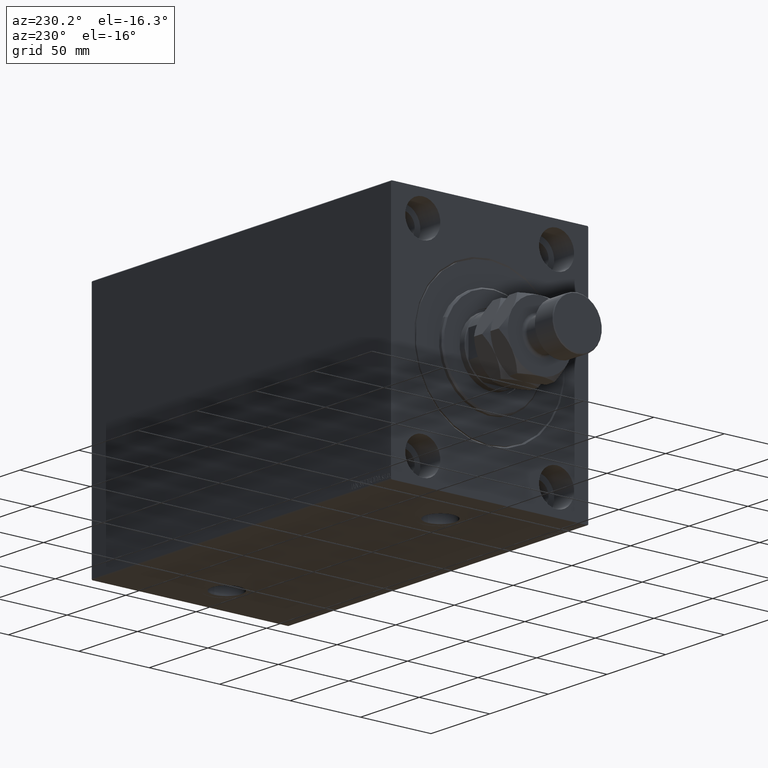
[diagram: clean part render]
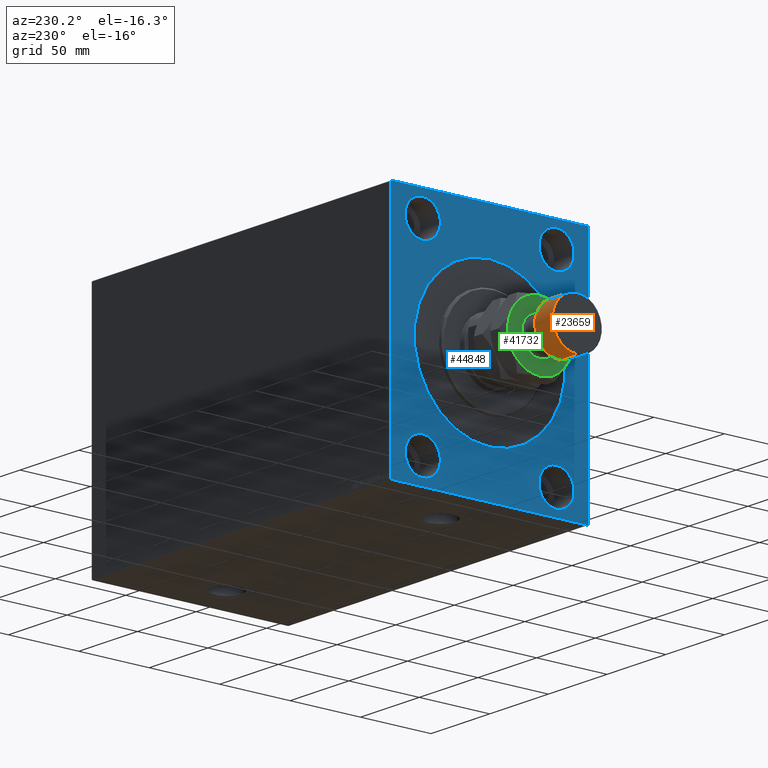
[diagram: same view with three faces highlighted in distinct colors, each labeled with its STEP entity id]
A machine part, auxiliary view with three faces highlighted in distinct colors.
Their STEP definitions:

[orange] entity #23659 — the highlighted cylindrical surface (edge-blend (fillet) strip) has radius 17.5 mm, axis along (1, -0, -0).
#3370 = EDGE_CURVE ( 'NONE', #46979, #18808, #38645, .T. ) ;
#5675 = CARTESIAN_POINT ( 'NONE',  ( -17.50000000000000355, 0.000000000000000000, 60.00000000000000000 ) ) ;
#6267 = CARTESIAN_POINT ( 'NONE',  ( -17.50000000000000355, 0.000000000000000000, 59.50000000000000000 ) ) ;
#6360 = DIRECTION ( 'NONE',  ( -1.000000000000000000, 0.000000000000000000, 0.000000000000000000 ) ) ;
#8763 = CARTESIAN_POINT ( 'NONE',  ( 17.50000000000000355, 2.143131898507868643E-15, 60.00000000000000000 ) ) ;
#9243 = AXIS2_PLACEMENT_3D ( 'NONE', #19319, #15052, #29322 ) ;
#9318 = VERTEX_POINT ( 'NONE', #6267 ) ;
#9461 = DIRECTION ( 'NONE',  ( -0.000000000000000000, -0.000000000000000000, -1.000000000000000000 ) ) ;
#9656 = AXIS2_PLACEMENT_3D ( 'NONE', #14217, #18262, #6360 ) ;
#13926 = CARTESIAN_POINT ( 'NONE',  ( 17.50000000000000355, 2.143131898507868643E-15, 44.50000000000000000 ) ) ;
#14217 = CARTESIAN_POINT ( 'NONE',  ( 0.000000000000000000, 0.000000000000000000, 60.00000000000000000 ) ) ;
#15052 = DIRECTION ( 'NONE',  ( 0.000000000000000000, 0.000000000000000000, -1.000000000000000000 ) ) ;
#15709 = ORIENTED_EDGE ( 'NONE', *, *, #3370, .T. ) ;
#17600 = CIRCLE ( 'NONE', #9243, 17.50000000000000355 ) ;
#18262 = DIRECTION ( 'NONE',  ( -0.000000000000000000, -0.000000000000000000, -1.000000000000000000 ) ) ;
#18808 = VERTEX_POINT ( 'NONE', #30628 ) ;
#19319 = CARTESIAN_POINT ( 'NONE',  ( 0.000000000000000000, 0.000000000000000000, 59.50000000000000000 ) ) ;
#20195 = DIRECTION ( 'NONE',  ( -0.000000000000000000, -0.000000000000000000, -1.000000000000000000 ) ) ;
#21953 = EDGE_LOOP ( 'NONE', ( #23059, #43789, #15709, #34257 ) ) ;
#22780 = EDGE_CURVE ( 'NONE', #43106, #46979, #34916, .T. ) ;
#23059 = ORIENTED_EDGE ( 'NONE', *, *, #40356, .T. ) ;
#23496 = VECTOR ( 'NONE', #20195, 1000.000000000000000 ) ;
#23659 = ADVANCED_FACE ( 'NONE', ( #46830 ), #31826, .T. ) ;
#24079 = DIRECTION ( 'NONE',  ( -0.000000000000000000, -0.000000000000000000, 1.000000000000000000 ) ) ;
#29322 = DIRECTION ( 'NONE',  ( 1.000000000000000000, 0.000000000000000000, 0.000000000000000000 ) ) ;
#30628 = CARTESIAN_POINT ( 'NONE',  ( -17.50000000000000355, 0.000000000000000000, 44.50000000000000000 ) ) ;
#30908 = VECTOR ( 'NONE', #9461, 1000.000000000000000 ) ;
#31460 = CARTESIAN_POINT ( 'NONE',  ( 0.000000000000000000, 0.000000000000000000, 44.50000000000000000 ) ) ;
#31826 = CYLINDRICAL_SURFACE ( 'NONE', #9656, 17.50000000000000355 ) ;
#34257 = ORIENTED_EDGE ( 'NONE', *, *, #34501, .F. ) ;
#34501 = EDGE_CURVE ( 'NONE', #9318, #18808, #44748, .T. ) ;
#34916 = LINE ( 'NONE', #8763, #30908 ) ;
#37784 = CARTESIAN_POINT ( 'NONE',  ( 17.50000000000000355, 2.143131898507868643E-15, 59.50000000000000000 ) ) ;
#37893 = AXIS2_PLACEMENT_3D ( 'NONE', #31460, #24079, #45751 ) ;
#38645 = CIRCLE ( 'NONE', #37893, 17.50000000000000355 ) ;
#40356 = EDGE_CURVE ( 'NONE', #9318, #43106, #17600, .T. ) ;
#43106 = VERTEX_POINT ( 'NONE', #37784 ) ;
#43789 = ORIENTED_EDGE ( 'NONE', *, *, #22780, .T. ) ;
#44748 = LINE ( 'NONE', #5675, #23496 ) ;
#45751 = DIRECTION ( 'NONE',  ( 1.000000000000000000, 0.000000000000000000, 0.000000000000000000 ) ) ;
#46830 = FACE_OUTER_BOUND ( 'NONE', #21953, .T. ) ;
#46979 = VERTEX_POINT ( 'NONE', #13926 ) ;

[blue] entity #44848 — the highlighted planar face has unit normal (1, 0, 0).
#46 = DIRECTION ( 'NONE',  ( 0.000000000000000000, 0.000000000000000000, -1.000000000000000000 ) ) ;
#304 = EDGE_CURVE ( 'NONE', #24038, #6653, #42408, .T. ) ;
#307 = VERTEX_POINT ( 'NONE', #37406 ) ;
#341 = CARTESIAN_POINT ( 'NONE',  ( 0.000000000000000000, 47.50000000000000711, -67.50000000000000000 ) ) ;
#545 = EDGE_CURVE ( 'NONE', #34104, #9589, #20250, .T. ) ;
#741 = CARTESIAN_POINT ( 'NONE',  ( 0.000000000000000000, -47.49999999999999289, -55.00000000000000711 ) ) ;
#1072 = ORIENTED_EDGE ( 'NONE', *, *, #42044, .F. ) ;
#1222 = ORIENTED_EDGE ( 'NONE', *, *, #19933, .F. ) ;
#1577 = CIRCLE ( 'NONE', #28187, 12.50000000000001066 ) ;
#2085 = FACE_BOUND ( 'NONE', #15427, .T. ) ;
#2349 = CARTESIAN_POINT ( 'NONE',  ( 0.000000000000000000, -69.50000000000001421, 84.99999999999998579 ) ) ;
#2425 = DIRECTION ( 'NONE',  ( 0.000000000000000000, 0.000000000000000000, 1.000000000000000000 ) ) ;
#2545 = VECTOR ( 'NONE', #32932, 1000.000000000000114 ) ;
#2890 = CIRCLE ( 'NONE', #15798, 12.50000000000001066 ) ;
#3262 = LINE ( 'NONE', #7307, #32788 ) ;
#3654 = LINE ( 'NONE', #3893, #2545 ) ;
#3775 = VERTEX_POINT ( 'NONE', #40202 ) ;
#3893 = CARTESIAN_POINT ( 'NONE',  ( 0.000000000000000000, 69.50000000000004263, 85.00000000000000000 ) ) ;
#4350 = CIRCLE ( 'NONE', #24082, 12.49999999999999645 ) ;
#4598 = VECTOR ( 'NONE', #16784, 1000.000000000000000 ) ;
#4927 = EDGE_LOOP ( 'NONE', ( #1222, #10560 ) ) ;
#4955 = AXIS2_PLACEMENT_3D ( 'NONE', #341, #18669, #40566 ) ;
#5306 = CARTESIAN_POINT ( 'NONE',  ( 0.000000000000000000, -69.50000000000001421, -85.00000000000002842 ) ) ;
#5802 = ORIENTED_EDGE ( 'NONE', *, *, #21502, .T. ) ;
#6085 = EDGE_CURVE ( 'NONE', #26181, #13752, #46337, .T. ) ;
#6177 = AXIS2_PLACEMENT_3D ( 'NONE', #45532, #27899, #41494 ) ;
#6293 = EDGE_CURVE ( 'NONE', #22132, #19410, #23398, .T. ) ;
#6653 = VERTEX_POINT ( 'NONE', #13597 ) ;
#6715 = ORIENTED_EDGE ( 'NONE', *, *, #23867, .T. ) ;
#6877 = CARTESIAN_POINT ( 'NONE',  ( 0.000000000000000000, -47.49999999999997868, 67.50000000000000000 ) ) ;
#7194 = ORIENTED_EDGE ( 'NONE', *, *, #43462, .T. ) ;
#7307 = CARTESIAN_POINT ( 'NONE',  ( 0.000000000000000000, 70.00000000000001421, 85.00000000000000000 ) ) ;
#7440 = VECTOR ( 'NONE', #28331, 1000.000000000000000 ) ;
#8067 = EDGE_CURVE ( 'NONE', #22132, #45887, #38679, .T. ) ;
#9484 = DIRECTION ( 'NONE',  ( 0.000000000000000000, 0.000000000000000000, -1.000000000000000000 ) ) ;
#9589 = VERTEX_POINT ( 'NONE', #21844 ) ;
#9955 = PLANE ( 'NONE',  #22304 ) ;
#10197 = FACE_BOUND ( 'NONE', #33950, .T. ) ;
#10560 = ORIENTED_EDGE ( 'NONE', *, *, #39461, .F. ) ;
#11087 = DIRECTION ( 'NONE',  ( 0.000000000000000000, 0.000000000000000000, 1.000000000000000000 ) ) ;
#11323 = DIRECTION ( 'NONE',  ( -1.000000000000000000, 0.000000000000000000, 0.000000000000000000 ) ) ;
#12489 = DIRECTION ( 'NONE',  ( -1.000000000000000000, 0.000000000000000000, 0.000000000000000000 ) ) ;
#13125 = ORIENTED_EDGE ( 'NONE', *, *, #42633, .F. ) ;
#13394 = CARTESIAN_POINT ( 'NONE',  ( 0.000000000000000000, 70.00000000000002842, -84.50000000000009948 ) ) ;
#13597 = CARTESIAN_POINT ( 'NONE',  ( 0.000000000000000000, 6.551860375438343048E-15, -53.50000000000002842 ) ) ;
#13626 = CARTESIAN_POINT ( 'NONE',  ( 0.000000000000000000, -47.49999999999999289, -67.50000000000000000 ) ) ;
#13752 = VERTEX_POINT ( 'NONE', #29928 ) ;
#13828 = CARTESIAN_POINT ( 'NONE',  ( 0.000000000000000000, 70.00000000000002842, -85.00000000000001421 ) ) ;
#13868 = LINE ( 'NONE', #13394, #14583 ) ;
#14027 = CARTESIAN_POINT ( 'NONE',  ( 0.000000000000000000, 0.000000000000000000, 0.000000000000000000 ) ) ;
#14583 = VECTOR ( 'NONE', #35759, 999.9999999999998863 ) ;
#14902 = AXIS2_PLACEMENT_3D ( 'NONE', #14027, #28529, #38778 ) ;
#14948 = CARTESIAN_POINT ( 'NONE',  ( 0.000000000000000000, -69.99999999999998579, 84.50000000000001421 ) ) ;
#15056 = AXIS2_PLACEMENT_3D ( 'NONE', #26457, #37869, #19095 ) ;
#15401 = EDGE_CURVE ( 'NONE', #46732, #9589, #3654, .T. ) ;
#15427 = EDGE_LOOP ( 'NONE', ( #18684, #23350 ) ) ;
#15798 = AXIS2_PLACEMENT_3D ( 'NONE', #22887, #33378, #22422 ) ;
#16494 = DIRECTION ( 'NONE',  ( -0.000000000000000000, -0.7071067811865376918, 0.7071067811865573427 ) ) ;
#16604 = FACE_OUTER_BOUND ( 'NONE', #32312, .T. ) ;
#16784 = DIRECTION ( 'NONE',  ( 0.000000000000000000, 1.000000000000000000, 9.912705577010325549E-17 ) ) ;
#17184 = DIRECTION ( 'NONE',  ( -1.000000000000000000, 0.000000000000000000, 0.000000000000000000 ) ) ;
#17481 = VECTOR ( 'NONE', #16494, 1000.000000000000114 ) ;
#17485 = ORIENTED_EDGE ( 'NONE', *, *, #30323, .F. ) ;
#17795 = EDGE_CURVE ( 'NONE', #13752, #26181, #41398, .T. ) ;
#18094 = VERTEX_POINT ( 'NONE', #43003 ) ;
#18494 = DIRECTION ( 'NONE',  ( 0.000000000000000000, -1.000000000000000000, -9.912705577010325549E-17 ) ) ;
#18669 = DIRECTION ( 'NONE',  ( -1.000000000000000000, 0.000000000000000000, 0.000000000000000000 ) ) ;
#18684 = ORIENTED_EDGE ( 'NONE', *, *, #19009, .F. ) ;
#18707 = ORIENTED_EDGE ( 'NONE', *, *, #6085, .F. ) ;
#19009 = EDGE_CURVE ( 'NONE', #37398, #307, #36096, .T. ) ;
#19095 = DIRECTION ( 'NONE',  ( 0.000000000000000000, 0.000000000000000000, -1.000000000000000000 ) ) ;
#19410 = VERTEX_POINT ( 'NONE', #22056 ) ;
#19933 = EDGE_CURVE ( 'NONE', #26280, #34428, #37647, .T. ) ;
#20250 = LINE ( 'NONE', #13828, #7440 ) ;
#20565 = DIRECTION ( 'NONE',  ( 0.000000000000000000, 0.000000000000000000, 1.000000000000000000 ) ) ;
#21231 = CARTESIAN_POINT ( 'NONE',  ( 0.000000000000000000, 47.50000000000000711, 67.50000000000000000 ) ) ;
#21461 = CARTESIAN_POINT ( 'NONE',  ( 0.000000000000000000, -47.49999999999997868, 55.00000000000000000 ) ) ;
#21502 = EDGE_CURVE ( 'NONE', #6653, #24038, #37675, .T. ) ;
#21844 = CARTESIAN_POINT ( 'NONE',  ( 0.000000000000000000, 70.00000000000001421, 84.50000000000001421 ) ) ;
#22005 = ORIENTED_EDGE ( 'NONE', *, *, #15401, .T. ) ;
#22056 = CARTESIAN_POINT ( 'NONE',  ( 0.000000000000000000, -69.99999999999998579, -84.50000000000004263 ) ) ;
#22132 = VERTEX_POINT ( 'NONE', #31944 ) ;
#22304 = AXIS2_PLACEMENT_3D ( 'NONE', #46130, #31836, #9484 ) ;
#22422 = DIRECTION ( 'NONE',  ( 0.000000000000000000, 0.000000000000000000, 1.000000000000000000 ) ) ;
#22636 = ORIENTED_EDGE ( 'NONE', *, *, #6293, .T. ) ;
#22887 = CARTESIAN_POINT ( 'NONE',  ( 0.000000000000000000, 47.50000000000000711, 67.50000000000000000 ) ) ;
#23350 = ORIENTED_EDGE ( 'NONE', *, *, #28643, .F. ) ;
#23398 = LINE ( 'NONE', #5306, #17481 ) ;
#23815 = ORIENTED_EDGE ( 'NONE', *, *, #17795, .F. ) ;
#23867 = EDGE_CURVE ( 'NONE', #34628, #35375, #24633, .T. ) ;
#23918 = CARTESIAN_POINT ( 'NONE',  ( 0.000000000000000000, -69.99999999999998579, -85.00000000000002842 ) ) ;
#24038 = VERTEX_POINT ( 'NONE', #36071 ) ;
#24066 = CARTESIAN_POINT ( 'NONE',  ( 0.000000000000000000, 70.00000000000002842, -84.50000000000009948 ) ) ;
#24082 = AXIS2_PLACEMENT_3D ( 'NONE', #38651, #12489, #20565 ) ;
#24217 = FACE_BOUND ( 'NONE', #28419, .T. ) ;
#24633 = LINE ( 'NONE', #42493, #27860 ) ;
#24727 = DIRECTION ( 'NONE',  ( -1.000000000000000000, 0.000000000000000000, 0.000000000000000000 ) ) ;
#24805 = CARTESIAN_POINT ( 'NONE',  ( 0.000000000000000000, -69.99999999999998579, 84.99999999999998579 ) ) ;
#25274 = ORIENTED_EDGE ( 'NONE', *, *, #8067, .F. ) ;
#25817 = AXIS2_PLACEMENT_3D ( 'NONE', #29383, #11323, #11087 ) ;
#26181 = VERTEX_POINT ( 'NONE', #21461 ) ;
#26237 = AXIS2_PLACEMENT_3D ( 'NONE', #13626, #17184, #42662 ) ;
#26280 = VERTEX_POINT ( 'NONE', #39544 ) ;
#26457 = CARTESIAN_POINT ( 'NONE',  ( 0.000000000000000000, 0.000000000000000000, 0.000000000000000000 ) ) ;
#26546 = ORIENTED_EDGE ( 'NONE', *, *, #304, .T. ) ;
#27860 = VECTOR ( 'NONE', #28436, 1000.000000000000114 ) ;
#27899 = DIRECTION ( 'NONE',  ( -1.000000000000000000, 0.000000000000000000, 0.000000000000000000 ) ) ;
#28187 = AXIS2_PLACEMENT_3D ( 'NONE', #21231, #38844, #2425 ) ;
#28264 = FACE_BOUND ( 'NONE', #4927, .T. ) ;
#28295 = DIRECTION ( 'NONE',  ( 0.000000000000000000, 0.000000000000000000, 1.000000000000000000 ) ) ;
#28331 = DIRECTION ( 'NONE',  ( 0.000000000000000000, -8.163404592832031500E-17, 1.000000000000000000 ) ) ;
#28419 = EDGE_LOOP ( 'NONE', ( #17485, #13125 ) ) ;
#28436 = DIRECTION ( 'NONE',  ( -0.000000000000000000, 0.7071067811865474617, 0.7071067811865474617 ) ) ;
#28529 = DIRECTION ( 'NONE',  ( 1.000000000000000000, 0.000000000000000000, 0.000000000000000000 ) ) ;
#28643 = EDGE_CURVE ( 'NONE', #307, #37398, #4350, .T. ) ;
#29083 = LINE ( 'NONE', #24805, #35027 ) ;
#29383 = CARTESIAN_POINT ( 'NONE',  ( 0.000000000000000000, -47.49999999999997868, 67.50000000000000000 ) ) ;
#29513 = CARTESIAN_POINT ( 'NONE',  ( 0.000000000000000000, 47.50000000000000711, -80.00000000000000000 ) ) ;
#29928 = CARTESIAN_POINT ( 'NONE',  ( 0.000000000000000000, -47.49999999999997868, 80.00000000000001421 ) ) ;
#30323 = EDGE_CURVE ( 'NONE', #3775, #18094, #2890, .T. ) ;
#30385 = EDGE_LOOP ( 'NONE', ( #26546, #5802 ) ) ;
#30819 = ORIENTED_EDGE ( 'NONE', *, *, #44081, .F. ) ;
#31366 = FACE_BOUND ( 'NONE', #30385, .T. ) ;
#31836 = DIRECTION ( 'NONE',  ( 1.000000000000000000, 0.000000000000000000, 0.000000000000000000 ) ) ;
#31944 = CARTESIAN_POINT ( 'NONE',  ( 0.000000000000000000, -69.50000000000001421, -85.00000000000002842 ) ) ;
#32292 = CARTESIAN_POINT ( 'NONE',  ( 0.000000000000000000, 69.50000000000004263, 85.00000000000000000 ) ) ;
#32312 = EDGE_LOOP ( 'NONE', ( #1072, #6715, #30819, #22005, #39391, #7194, #25274, #22636 ) ) ;
#32788 = VECTOR ( 'NONE', #18494, 1000.000000000000000 ) ;
#32932 = DIRECTION ( 'NONE',  ( -0.000000000000000000, 0.7071067811865376918, -0.7071067811865573427 ) ) ;
#33378 = DIRECTION ( 'NONE',  ( -1.000000000000000000, 0.000000000000000000, 0.000000000000000000 ) ) ;
#33950 = EDGE_LOOP ( 'NONE', ( #23815, #18707 ) ) ;
#34104 = VERTEX_POINT ( 'NONE', #24066 ) ;
#34428 = VERTEX_POINT ( 'NONE', #29513 ) ;
#34628 = VERTEX_POINT ( 'NONE', #14948 ) ;
#35027 = VECTOR ( 'NONE', #46, 1000.000000000000000 ) ;
#35375 = VERTEX_POINT ( 'NONE', #2349 ) ;
#35759 = DIRECTION ( 'NONE',  ( 0.000000000000000000, -0.7071067811865376918, -0.7071067811865574537 ) ) ;
#36071 = CARTESIAN_POINT ( 'NONE',  ( 0.000000000000000000, 0.000000000000000000, 53.50000000000002842 ) ) ;
#36096 = CIRCLE ( 'NONE', #26237, 12.49999999999999645 ) ;
#37398 = VERTEX_POINT ( 'NONE', #741 ) ;
#37406 = CARTESIAN_POINT ( 'NONE',  ( 0.000000000000000000, -47.49999999999999289, -80.00000000000000000 ) ) ;
#37647 = CIRCLE ( 'NONE', #4955, 12.49999999999999645 ) ;
#37675 = CIRCLE ( 'NONE', #14902, 53.50000000000002842 ) ;
#37869 = DIRECTION ( 'NONE',  ( 1.000000000000000000, 0.000000000000000000, 0.000000000000000000 ) ) ;
#38651 = CARTESIAN_POINT ( 'NONE',  ( 0.000000000000000000, -47.49999999999999289, -67.50000000000000000 ) ) ;
#38679 = LINE ( 'NONE', #23918, #4598 ) ;
#38778 = DIRECTION ( 'NONE',  ( 0.000000000000000000, 0.000000000000000000, -1.000000000000000000 ) ) ;
#38844 = DIRECTION ( 'NONE',  ( -1.000000000000000000, 0.000000000000000000, 0.000000000000000000 ) ) ;
#39117 = AXIS2_PLACEMENT_3D ( 'NONE', #6877, #24727, #28295 ) ;
#39391 = ORIENTED_EDGE ( 'NONE', *, *, #545, .F. ) ;
#39461 = EDGE_CURVE ( 'NONE', #34428, #26280, #45696, .T. ) ;
#39544 = CARTESIAN_POINT ( 'NONE',  ( 0.000000000000000000, 47.50000000000000711, -55.00000000000000711 ) ) ;
#40202 = CARTESIAN_POINT ( 'NONE',  ( 0.000000000000000000, 47.50000000000000711, 80.00000000000001421 ) ) ;
#40566 = DIRECTION ( 'NONE',  ( 0.000000000000000000, 0.000000000000000000, 1.000000000000000000 ) ) ;
#41023 = CARTESIAN_POINT ( 'NONE',  ( 0.000000000000000000, 69.50000000000012790, -85.00000000000001421 ) ) ;
#41398 = CIRCLE ( 'NONE', #39117, 12.50000000000001066 ) ;
#41494 = DIRECTION ( 'NONE',  ( 0.000000000000000000, 0.000000000000000000, 1.000000000000000000 ) ) ;
#42044 = EDGE_CURVE ( 'NONE', #34628, #19410, #29083, .T. ) ;
#42408 = CIRCLE ( 'NONE', #15056, 53.50000000000002842 ) ;
#42493 = CARTESIAN_POINT ( 'NONE',  ( 0.000000000000000000, -69.99999999999998579, 84.50000000000001421 ) ) ;
#42633 = EDGE_CURVE ( 'NONE', #18094, #3775, #1577, .T. ) ;
#42662 = DIRECTION ( 'NONE',  ( 0.000000000000000000, 0.000000000000000000, 1.000000000000000000 ) ) ;
#43003 = CARTESIAN_POINT ( 'NONE',  ( 0.000000000000000000, 47.50000000000000711, 55.00000000000000000 ) ) ;
#43462 = EDGE_CURVE ( 'NONE', #34104, #45887, #13868, .T. ) ;
#44081 = EDGE_CURVE ( 'NONE', #46732, #35375, #3262, .T. ) ;
#44848 = ADVANCED_FACE ( 'NONE', ( #31366, #28264, #10197, #24217, #2085, #16604 ), #9955, .F. ) ;
#45532 = CARTESIAN_POINT ( 'NONE',  ( 0.000000000000000000, 47.50000000000000711, -67.50000000000000000 ) ) ;
#45696 = CIRCLE ( 'NONE', #6177, 12.49999999999999645 ) ;
#45887 = VERTEX_POINT ( 'NONE', #41023 ) ;
#46130 = CARTESIAN_POINT ( 'NONE',  ( 0.000000000000000000, 0.000000000000000000, 0.000000000000000000 ) ) ;
#46337 = CIRCLE ( 'NONE', #25817, 12.50000000000001066 ) ;
#46732 = VERTEX_POINT ( 'NONE', #32292 ) ;

[green] entity #41732 — the highlighted planar face has unit normal (-1, 0, 0).
#650 = AXIS2_PLACEMENT_3D ( 'NONE', #11240, #29305, #39791 ) ;
#1873 = DIRECTION ( 'NONE',  ( 1.000000000000000000, 0.000000000000000000, 0.000000000000000000 ) ) ;
#2274 = FACE_BOUND ( 'NONE', #23700, .T. ) ;
#2391 = DIRECTION ( 'NONE',  ( -0.000000000000000000, -0.000000000000000000, -1.000000000000000000 ) ) ;
#3377 = AXIS2_PLACEMENT_3D ( 'NONE', #37595, #12827, #1873 ) ;
#3845 = CIRCLE ( 'NONE', #9137, 22.99999999999999645 ) ;
#4028 = VERTEX_POINT ( 'NONE', #41835 ) ;
#4362 = EDGE_LOOP ( 'NONE', ( #32233, #21429, #22059, #44809, #8209, #38659 ) ) ;
#6093 = VERTEX_POINT ( 'NONE', #40352 ) ;
#6728 = CIRCLE ( 'NONE', #650, 22.99999999999999645 ) ;
#6809 = ORIENTED_EDGE ( 'NONE', *, *, #16895, .T. ) ;
#8209 = ORIENTED_EDGE ( 'NONE', *, *, #42565, .T. ) ;
#9089 = CARTESIAN_POINT ( 'NONE',  ( 11.50000000000000533, -19.91858428704207995, 28.00000000000000000 ) ) ;
#9137 = AXIS2_PLACEMENT_3D ( 'NONE', #37431, #11748, #30048 ) ;
#9194 = DIRECTION ( 'NONE',  ( 0.000000000000000000, 0.000000000000000000, 1.000000000000000000 ) ) ;
#10835 = AXIS2_PLACEMENT_3D ( 'NONE', #44774, #15963, #45010 ) ;
#11240 = CARTESIAN_POINT ( 'NONE',  ( 0.000000000000000000, 0.000000000000000000, 28.00000000000000000 ) ) ;
#11748 = DIRECTION ( 'NONE',  ( 0.000000000000000000, 0.000000000000000000, 1.000000000000000000 ) ) ;
#12757 = FACE_OUTER_BOUND ( 'NONE', #4362, .T. ) ;
#12827 = DIRECTION ( 'NONE',  ( -0.000000000000000000, -0.000000000000000000, -1.000000000000000000 ) ) ;
#12896 = CARTESIAN_POINT ( 'NONE',  ( 0.000000000000000000, 0.000000000000000000, 28.00000000000000000 ) ) ;
#12944 = CARTESIAN_POINT ( 'NONE',  ( 11.49999999999999822, 19.91858428704208706, 28.00000000000000000 ) ) ;
#14808 = CIRCLE ( 'NONE', #3377, 13.00000000000000000 ) ;
#15963 = DIRECTION ( 'NONE',  ( 0.000000000000000000, 0.000000000000000000, 1.000000000000000000 ) ) ;
#15975 = DIRECTION ( 'NONE',  ( 1.000000000000000000, 0.000000000000000000, 0.000000000000000000 ) ) ;
#16705 = EDGE_CURVE ( 'NONE', #25851, #41402, #23881, .T. ) ;
#16796 = DIRECTION ( 'NONE',  ( 1.000000000000000000, 0.000000000000000000, -0.000000000000000000 ) ) ;
#16895 = EDGE_CURVE ( 'NONE', #29799, #4028, #14808, .T. ) ;
#18406 = VERTEX_POINT ( 'NONE', #23894 ) ;
#21369 = AXIS2_PLACEMENT_3D ( 'NONE', #31942, #45756, #42661 ) ;
#21429 = ORIENTED_EDGE ( 'NONE', *, *, #36499, .T. ) ;
#22054 = CIRCLE ( 'NONE', #31940, 22.99999999999999645 ) ;
#22059 = ORIENTED_EDGE ( 'NONE', *, *, #16705, .T. ) ;
#23700 = EDGE_LOOP ( 'NONE', ( #35954, #6809 ) ) ;
#23881 = CIRCLE ( 'NONE', #46742, 22.99999999999999645 ) ;
#23894 = CARTESIAN_POINT ( 'NONE',  ( -22.99999999999999645, 0.000000000000000000, 28.00000000000000000 ) ) ;
#23990 = CARTESIAN_POINT ( 'NONE',  ( -11.49999999999999822, 19.91858428704208706, 28.00000000000000000 ) ) ;
#24077 = DIRECTION ( 'NONE',  ( 0.000000000000000000, 0.000000000000000000, 1.000000000000000000 ) ) ;
#24305 = DIRECTION ( 'NONE',  ( 0.000000000000000000, 0.000000000000000000, 1.000000000000000000 ) ) ;
#25851 = VERTEX_POINT ( 'NONE', #12944 ) ;
#26834 = VERTEX_POINT ( 'NONE', #9089 ) ;
#27141 = CARTESIAN_POINT ( 'NONE',  ( 0.000000000000000000, 0.000000000000000000, 28.00000000000000000 ) ) ;
#27261 = PLANE ( 'NONE',  #43393 ) ;
#28904 = CIRCLE ( 'NONE', #37378, 13.00000000000000000 ) ;
#29305 = DIRECTION ( 'NONE',  ( 0.000000000000000000, 0.000000000000000000, 1.000000000000000000 ) ) ;
#29799 = VERTEX_POINT ( 'NONE', #44726 ) ;
#30048 = DIRECTION ( 'NONE',  ( 1.000000000000000000, 0.000000000000000000, 0.000000000000000000 ) ) ;
#31325 = CIRCLE ( 'NONE', #10835, 22.99999999999999645 ) ;
#31779 = EDGE_CURVE ( 'NONE', #41402, #18406, #6728, .T. ) ;
#31940 = AXIS2_PLACEMENT_3D ( 'NONE', #12896, #24077, #42887 ) ;
#31942 = CARTESIAN_POINT ( 'NONE',  ( 0.000000000000000000, 0.000000000000000000, 28.00000000000000000 ) ) ;
#32233 = ORIENTED_EDGE ( 'NONE', *, *, #46296, .T. ) ;
#35023 = CARTESIAN_POINT ( 'NONE',  ( 0.000000000000000000, 0.000000000000000000, 28.00000000000000000 ) ) ;
#35954 = ORIENTED_EDGE ( 'NONE', *, *, #40491, .T. ) ;
#36288 = EDGE_CURVE ( 'NONE', #6093, #26834, #3845, .T. ) ;
#36499 = EDGE_CURVE ( 'NONE', #44836, #25851, #22054, .T. ) ;
#37378 = AXIS2_PLACEMENT_3D ( 'NONE', #27141, #2391, #15975 ) ;
#37431 = CARTESIAN_POINT ( 'NONE',  ( 0.000000000000000000, 0.000000000000000000, 28.00000000000000000 ) ) ;
#37595 = CARTESIAN_POINT ( 'NONE',  ( 0.000000000000000000, 0.000000000000000000, 28.00000000000000000 ) ) ;
#38659 = ORIENTED_EDGE ( 'NONE', *, *, #36288, .T. ) ;
#39614 = CIRCLE ( 'NONE', #21369, 22.99999999999999645 ) ;
#39791 = DIRECTION ( 'NONE',  ( 1.000000000000000000, 0.000000000000000000, 0.000000000000000000 ) ) ;
#40352 = CARTESIAN_POINT ( 'NONE',  ( -11.50000000000000533, -19.91858428704208706, 28.00000000000000000 ) ) ;
#40491 = EDGE_CURVE ( 'NONE', #4028, #29799, #28904, .T. ) ;
#41402 = VERTEX_POINT ( 'NONE', #23990 ) ;
#41732 = ADVANCED_FACE ( 'NONE', ( #2274, #12757 ), #27261, .T. ) ;
#41808 = CARTESIAN_POINT ( 'NONE',  ( 0.000000000000000000, 0.000000000000000000, 28.00000000000000000 ) ) ;
#41835 = CARTESIAN_POINT ( 'NONE',  ( 13.00000000000000000, 0.000000000000000000, 27.99999999999999645 ) ) ;
#42556 = CARTESIAN_POINT ( 'NONE',  ( 22.99999999999999645, 0.000000000000000000, 28.00000000000000000 ) ) ;
#42565 = EDGE_CURVE ( 'NONE', #18406, #6093, #39614, .T. ) ;
#42661 = DIRECTION ( 'NONE',  ( 1.000000000000000000, 0.000000000000000000, 0.000000000000000000 ) ) ;
#42887 = DIRECTION ( 'NONE',  ( 1.000000000000000000, 0.000000000000000000, 0.000000000000000000 ) ) ;
#43393 = AXIS2_PLACEMENT_3D ( 'NONE', #41808, #9194, #16796 ) ;
#44726 = CARTESIAN_POINT ( 'NONE',  ( -13.00000000000000000, 1.592040838891559095E-15, 27.99999999999999645 ) ) ;
#44774 = CARTESIAN_POINT ( 'NONE',  ( 0.000000000000000000, 0.000000000000000000, 28.00000000000000000 ) ) ;
#44809 = ORIENTED_EDGE ( 'NONE', *, *, #31779, .T. ) ;
#44836 = VERTEX_POINT ( 'NONE', #42556 ) ;
#45010 = DIRECTION ( 'NONE',  ( 1.000000000000000000, 0.000000000000000000, 0.000000000000000000 ) ) ;
#45756 = DIRECTION ( 'NONE',  ( 0.000000000000000000, 0.000000000000000000, 1.000000000000000000 ) ) ;
#46296 = EDGE_CURVE ( 'NONE', #26834, #44836, #31325, .T. ) ;
#46689 = DIRECTION ( 'NONE',  ( 1.000000000000000000, 0.000000000000000000, 0.000000000000000000 ) ) ;
#46742 = AXIS2_PLACEMENT_3D ( 'NONE', #35023, #24305, #46689 ) ;